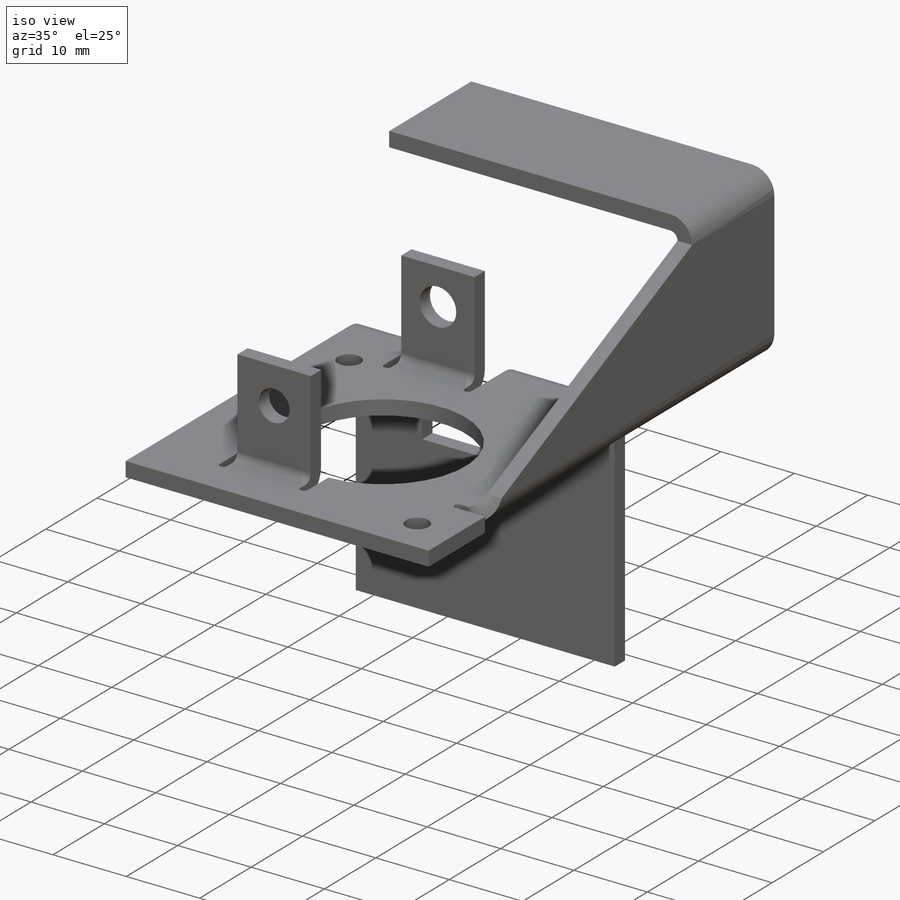
[diagram: iso view]
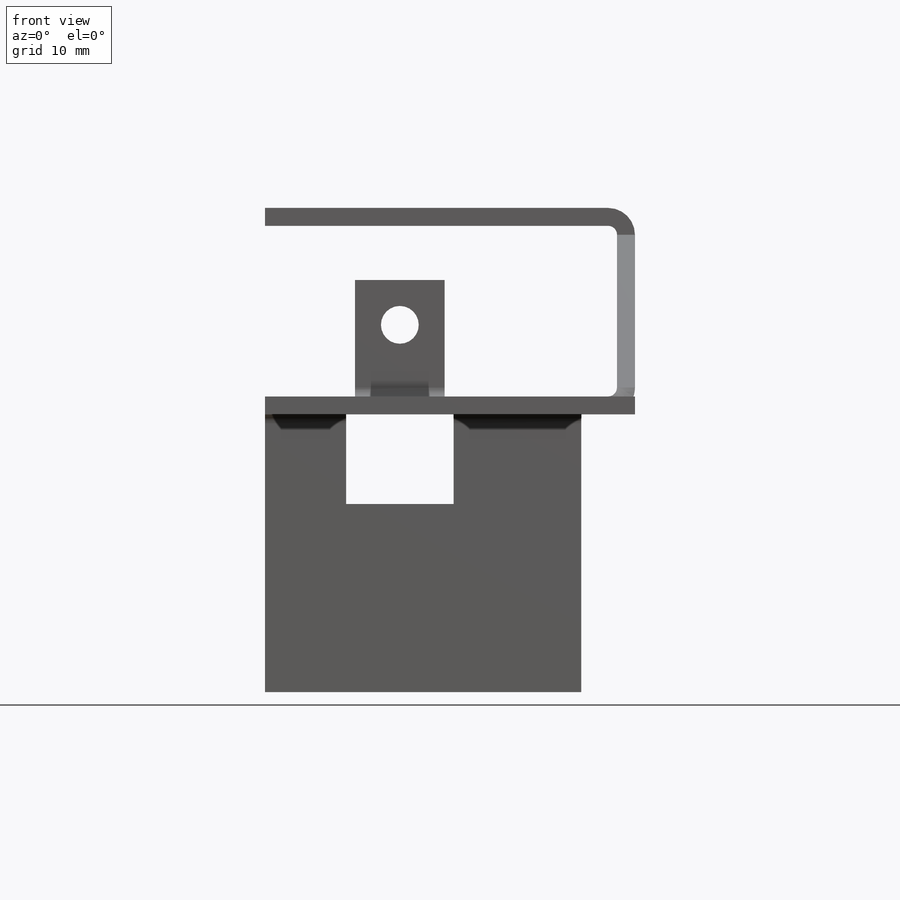
[diagram: front view]
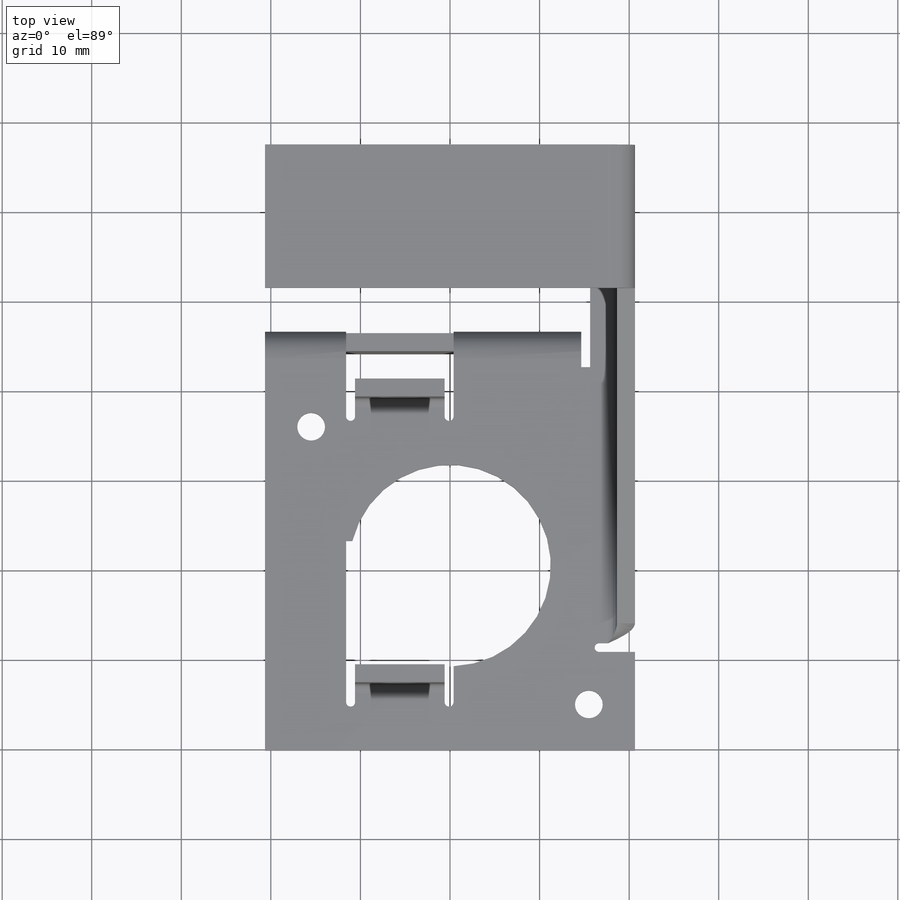
[diagram: top view]
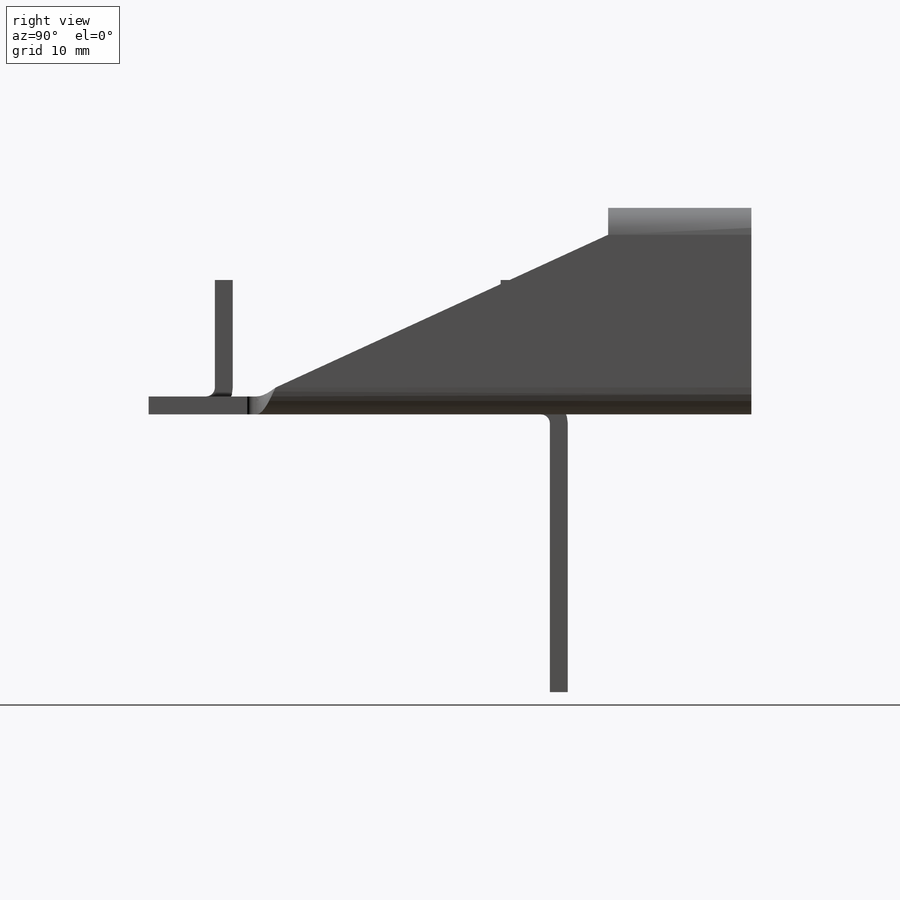
[diagram: right view]
SOLIDWORKS PART (.sldprt)
format: sldprt  version: not decoded by parser v0  size: 785,408 bytes
history: native  units: mm
features: sketch x45, sheet_metal_op x14, hole x4, cut_extrude x3, material x1 + 13 further entries (+13 scaffold rows collapsed; 13 parser-record rows omitted)
feature tree (106):
  scaffold x13  (default folders/planes/origin — collapsed)
  material  "Material <not specified>"
  sketch  "Sketch10"  dims[c1.D3=22.5mm c1.D1=41.8mm c1.D2=41.8mm c2.D1=0.5mm c2.D2=0.5mm c2.D4=0.5mm c2.D5=0.5mm c3.D1=0.5mm c4.D1=10.0mm c4.D2=0.5 c4.D3=0.0mm c4.D6=500.0mm]
  sheet_metal_op  "Base-Flange2"
  sketch  "Filament centre"  dims[D1=5.6mm D2=10.0mm]
  sketch  "Sketch48"  dims[c1.D1=15.5mm c1.D2=15.5mm c1.D3=~21.92031mm c2.D2=15.5mm c2.D3=15.5mm c2.D4=15.5mm c2.D5=15.5mm c2.D6=15.5mm c2.D7=15.5mm c2.D8=15.5mm]
  hole  "Ø3.1 (3.1) Diameter Hole1"  Diameter=3.1mm Depth=2mm
  sketch  "Sketch50"
  sketch  "Sketch49"  dims[hole-wizard template sketch: 60 standard entries collapsed; hole parameters kept: c18.Thru Hole Depth=2.0mm]
  sketch  "Sketch54"  dims[c1.D1=5.0mm c1.D2=~11.18034mm c2.D1=5.0mm c2.D2=5.0mm c2.D3=5.0mm c3.D1=1.0mm c3.D4=90.0deg c3.D5=5.0 c3.D8=1.0mm c3.D9=1.0mm c4.D1=1.0mm c4.D2=500.0mm c4.D3=0.0mm c4.D6=10.0mm c4.D7=15.0mm]
  sketch  "Sketch56"  dims[D1=5.0mm D2=26.0mm]
  hole  "Arm depth"  Diameter=10mm
  sketch  "Sketch61"  dims[c1.D1=12.0mm c1.D2=16.0mm c2.D1=1.0mm c2.D4=90.0deg c2.D5=6.0 c2.D8=1.0mm c2.D9=1.0mm c3.D1=1.0mm c3.D2=500.0mm c3.D3=0.0mm c3.D6=10.0mm c3.D7=20.0mm]
  sketch  "Sketch64"  dims[c1.D1=1.0mm c1.D4=90.0deg c1.D5=7.0 c1.D8=1.0mm c1.D9=1.0mm c2.D1=1.0mm c2.D2=500.0mm c2.D3=0.0mm c2.D6=10.0mm c2.D7=41.3mm]
  sketch  "Sketch69"  dims[D1=3.5mm]
  hole  "Underbelly flange"  Diameter=10mm
  sketch  "Sketch74"  dims[D1=1.0mm]
  sketch  "Sketch76"  dims[c1.D1=1.0mm c1.D4=90.0deg c1.D5=8.0 c1.D8=1.0mm c1.D9=1.0mm c2.D1=1.0mm c2.D4=90.0deg c2.D5=10.0 c2.D8=1.0mm c2.D9=1.0mm c3.D1=1.0mm c3.D2=500.0mm c3.D3=0.0mm c3.D6=10.0mm c3.D7=33.0mm c3.D8=1.0mm]
  sketch  "Sketch77"  dims[D1=10.0mm]
  hole  "Tab3"  Diameter=10mm
  sketch  "Sketch79"  dims[D1=14.0mm]
  cut_extrude  "Cut-Extrude1"  Depth=10mm
  sketch  "Sketch82"  dims[c1.D1=1.0mm c1.D4=90.0deg c1.D5=11.0 c1.D8=1.0mm c1.D9=1.0mm c2.D1=1.0mm c2.D2=500.0mm c2.D3=0.0mm c2.D6=10.0mm c2.D7=15.0mm]
  sketch  "Sketch83"  dims[D1=8.0mm]
  cut_extrude  "Cut-Extrude2"  [1 undecoded]
  sketch  "Sketch84"  dims[D1=5.0mm]
  cut_extrude  "Cut-Extrude3"  [1 undecoded]
  sketch  "Bend-Lines4"
  sketch  "Bounding-Box4"
  sheet_metal_op  "Sheet-Metal4"
  "Flat-Pattern4"
  sketch  "Bend-Lines5"
  sketch  "Bounding-Box5"
  parser-record x13  (decoder bookkeeping rows leaked as tree rows — omitted from the tree; the rows remain in map.json)
  sheet_metal_op  "Sheet-Metal19"
  "Flat-Pattern4"
  sketch  "Bend-Lines5"
  sketch  "Bounding-Box5"
  sheet_metal_op  "Sheet-Metal21"
  "Flat-Pattern4"
  sketch  "Bend-Lines5"
  sketch  "Bounding-Box5"
  sheet_metal_op  "Sheet-Metal22"
  "Flat-Pattern22"
  sketch  "Bend-Lines6"
  sketch  "Bounding-Box6"
  sheet_metal_op  "Sheet-Metal23"
  "Flat-Pattern22"
  sketch  "Bend-Lines6"
  sketch  "Bounding-Box6"
  sheet_metal_op  "Sheet-Metal24"
  "Flat-Pattern22"
  sketch  "Bend-Lines6"
  sketch  "Bounding-Box6"
  sheet_metal_op  "Sheet-Metal25"
  "Flat-Pattern25"
  sketch  "Bend-Lines7"
  sketch  "Bounding-Box7"
  sheet_metal_op  "Sheet-Metal26"
  "Flat-Pattern25"
  sketch  "Bend-Lines7"
  sketch  "Bounding-Box7"
  sheet_metal_op  "Sheet-Metal27"
  "Flat-Pattern27"
  sketch  "Bend-Lines8"
  sketch  "Bounding-Box8"
  sheet_metal_op  "Sheet-Metal28"
  "Flat-Pattern27"
  sketch  "Bend-Lines8"
  sketch  "Bounding-Box8"
  sheet_metal_op  "Sheet-Metal29"
  "Flat-Pattern27"
  sketch  "Bend-Lines8"
  sketch  "Bounding-Box8"
  sheet_metal_op  "Sheet-Metal30"
  "Flat-Pattern27"
  sketch  "Bend-Lines8"
  sketch  "Bounding-Box8"
  sheet_metal_op  "Sheet-Metal31"
  "Flat-Pattern27"
  sketch  "Bend-Lines8"
  sketch  "Bounding-Box8"
decode coverage: 21 of 66 modeling features carry decoded parameters; 13 rows unclassified (native names shown)
note: ~ marks probable driven/reference dimensions
note: 2 parameter values undecoded
note: suppression state not decoded; provenance and decode notes live in map.json
